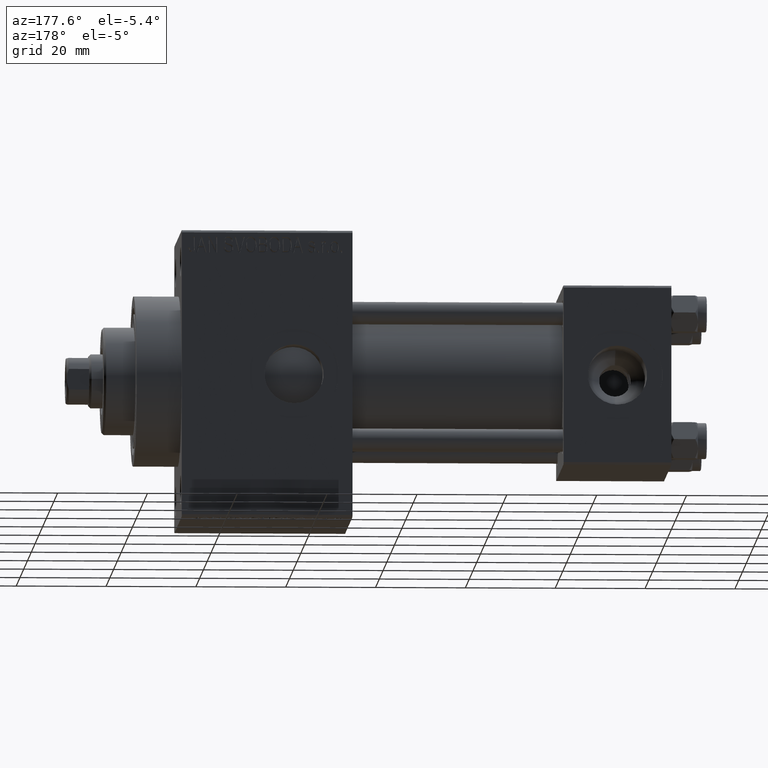
[diagram: clean part render]
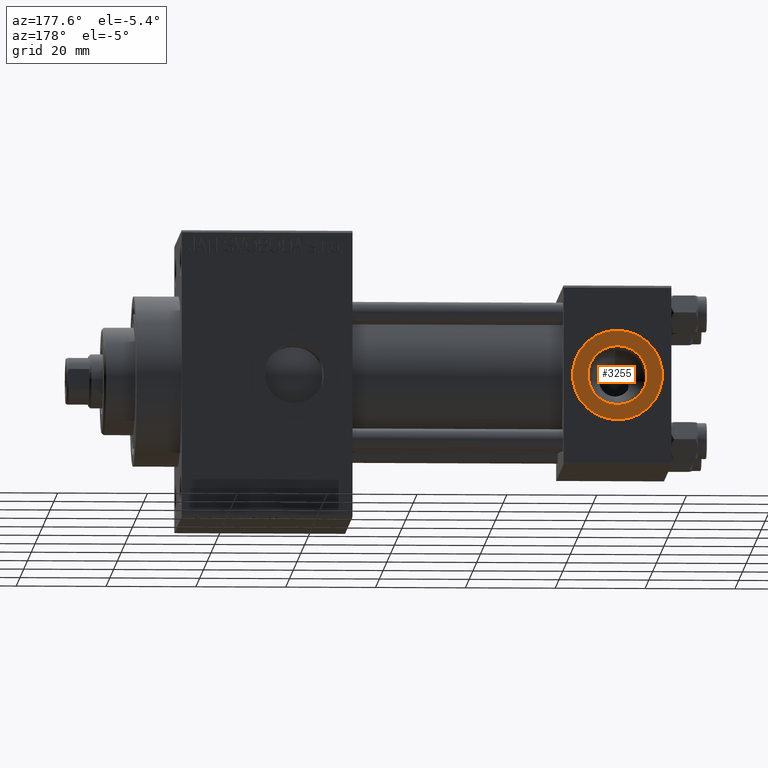
[diagram: same view with one face highlighted and labeled with its STEP entity id]
A machine part, auxiliary view. The second image highlights one B-rep face of the part: STEP entity #3255.
In plain terms, the highlighted planar face has unit normal (0, 1, 0).
Its self-contained STEP definition (entity closure, byte-faithful):
#47 = DIRECTION ( 'NONE',  ( 0.000000000000000000, 0.000000000000000000, 1.000000000000000000 ) ) ;
#3094 = CARTESIAN_POINT ( 'NONE',  ( 12.00000000000000000, 19.80000000000000071, 0.000000000000000000 ) ) ;
#3255 = ADVANCED_FACE ( 'NONE', ( #14819, #15066 ), #41549, .T. ) ;
#4803 = ORIENTED_EDGE ( 'NONE', *, *, #45425, .F. ) ;
#5122 = AXIS2_PLACEMENT_3D ( 'NONE', #30968, #27001, #47 ) ;
#6196 = CARTESIAN_POINT ( 'NONE',  ( 12.00000000000000000, 19.80000000000000071, 6.579999999999998295 ) ) ;
#6510 = EDGE_LOOP ( 'NONE', ( #43590, #20307 ) ) ;
#7643 = CARTESIAN_POINT ( 'NONE',  ( 12.00000000000000000, 19.80000000000000071, 0.000000000000000000 ) ) ;
#8939 = AXIS2_PLACEMENT_3D ( 'NONE', #7643, #37593, #29911 ) ;
#9060 = VERTEX_POINT ( 'NONE', #27028 ) ;
#11029 = DIRECTION ( 'NONE',  ( 0.000000000000000000, 1.000000000000000000, 0.000000000000000000 ) ) ;
#11059 = AXIS2_PLACEMENT_3D ( 'NONE', #29045, #41439, #37722 ) ;
#11469 = CIRCLE ( 'NONE', #5122, 10.00000000000000000 ) ;
#12669 = VERTEX_POINT ( 'NONE', #18141 ) ;
#13561 = AXIS2_PLACEMENT_3D ( 'NONE', #48407, #11029, #47654 ) ;
#14819 = FACE_BOUND ( 'NONE', #41896, .T. ) ;
#15066 = FACE_OUTER_BOUND ( 'NONE', #6510, .T. ) ;
#18141 = CARTESIAN_POINT ( 'NONE',  ( 12.00000000000000000, 19.80000000000000071, -6.579999999999998295 ) ) ;
#20307 = ORIENTED_EDGE ( 'NONE', *, *, #20681, .T. ) ;
#20681 = EDGE_CURVE ( 'NONE', #9060, #33270, #11469, .T. ) ;
#21657 = ORIENTED_EDGE ( 'NONE', *, *, #45440, .F. ) ;
#27001 = DIRECTION ( 'NONE',  ( 0.000000000000000000, 1.000000000000000000, 0.000000000000000000 ) ) ;
#27028 = CARTESIAN_POINT ( 'NONE',  ( 12.00000000000000178, 19.80000000000000071, -10.00000000000000000 ) ) ;
#29045 = CARTESIAN_POINT ( 'NONE',  ( 12.00000000000000000, 19.80000000000000071, 0.000000000000000000 ) ) ;
#29582 = DIRECTION ( 'NONE',  ( 0.000000000000000000, 0.000000000000000000, 1.000000000000000000 ) ) ;
#29911 = DIRECTION ( 'NONE',  ( 0.000000000000000000, -0.000000000000000000, 1.000000000000000000 ) ) ;
#30968 = CARTESIAN_POINT ( 'NONE',  ( 12.00000000000000000, 19.80000000000000071, 0.000000000000000000 ) ) ;
#33270 = VERTEX_POINT ( 'NONE', #42393 ) ;
#33300 = DIRECTION ( 'NONE',  ( 0.000000000000000000, 1.000000000000000000, 0.000000000000000000 ) ) ;
#34845 = EDGE_CURVE ( 'NONE', #33270, #9060, #42628, .T. ) ;
#37593 = DIRECTION ( 'NONE',  ( 0.000000000000000000, 1.000000000000000000, 0.000000000000000000 ) ) ;
#37722 = DIRECTION ( 'NONE',  ( 0.000000000000000000, 0.000000000000000000, 1.000000000000000000 ) ) ;
#38844 = CIRCLE ( 'NONE', #45182, 6.579999999999998295 ) ;
#41439 = DIRECTION ( 'NONE',  ( 0.000000000000000000, 1.000000000000000000, 0.000000000000000000 ) ) ;
#41549 = PLANE ( 'NONE',  #8939 ) ;
#41896 = EDGE_LOOP ( 'NONE', ( #4803, #21657 ) ) ;
#42363 = VERTEX_POINT ( 'NONE', #6196 ) ;
#42393 = CARTESIAN_POINT ( 'NONE',  ( 12.00000000000000000, 19.80000000000000071, 10.00000000000000000 ) ) ;
#42628 = CIRCLE ( 'NONE', #11059, 10.00000000000000000 ) ;
#43590 = ORIENTED_EDGE ( 'NONE', *, *, #34845, .T. ) ;
#45182 = AXIS2_PLACEMENT_3D ( 'NONE', #3094, #33300, #29582 ) ;
#45425 = EDGE_CURVE ( 'NONE', #42363, #12669, #47560, .T. ) ;
#45440 = EDGE_CURVE ( 'NONE', #12669, #42363, #38844, .T. ) ;
#47560 = CIRCLE ( 'NONE', #13561, 6.579999999999998295 ) ;
#47654 = DIRECTION ( 'NONE',  ( 0.000000000000000000, 0.000000000000000000, 1.000000000000000000 ) ) ;
#48407 = CARTESIAN_POINT ( 'NONE',  ( 12.00000000000000000, 19.80000000000000071, 0.000000000000000000 ) ) ;